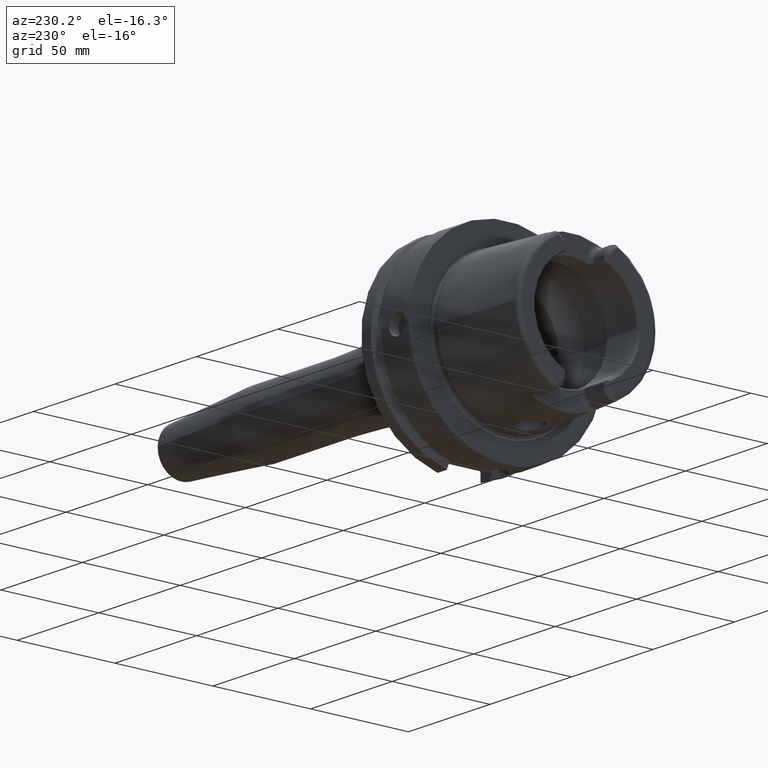
[diagram: clean part render]
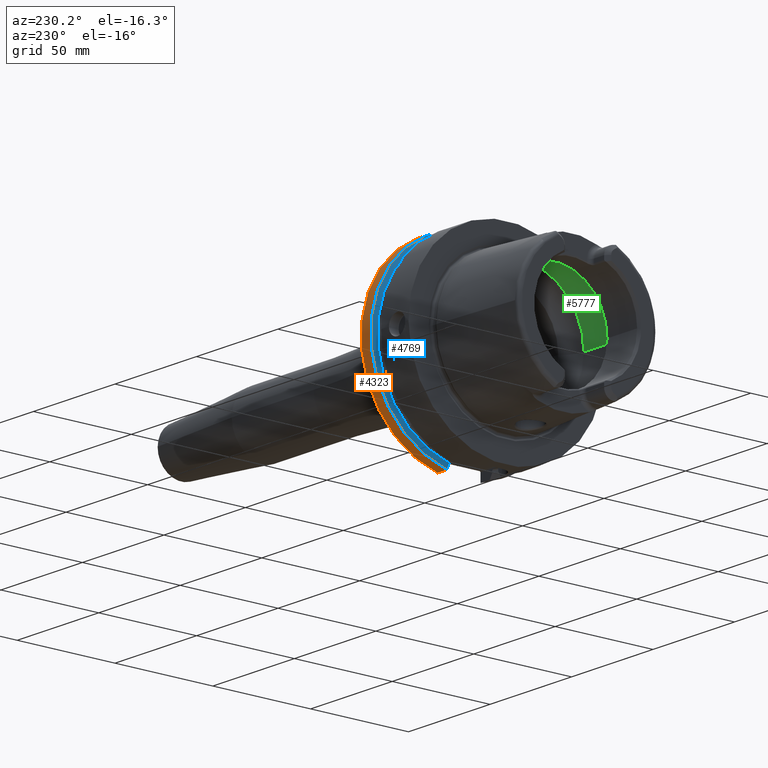
[diagram: same view with three faces highlighted in distinct colors, each labeled with its STEP entity id]
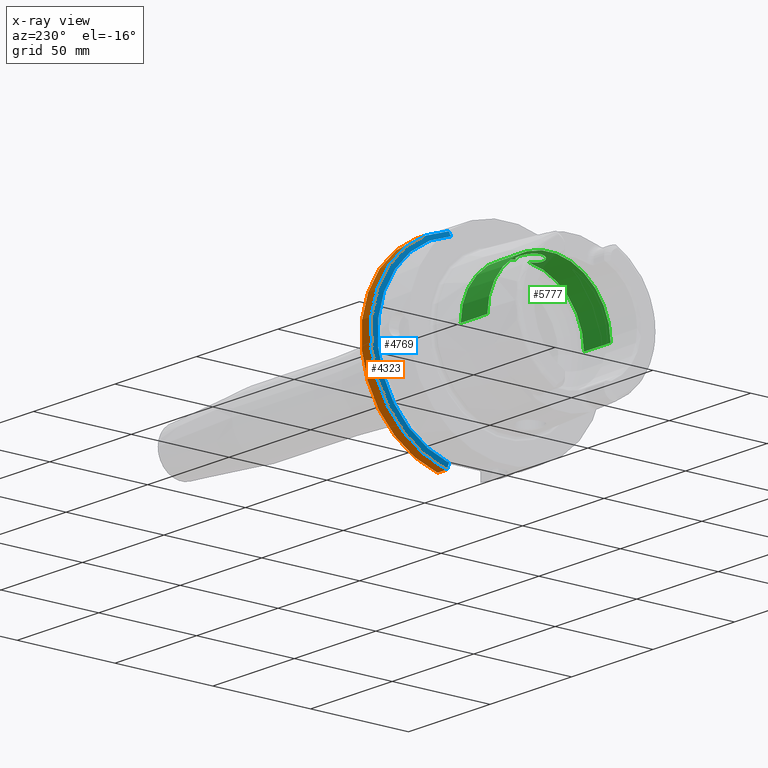
[diagram: x-ray of the same camera — body ghosted, the three highlighted faces saturated]
A machine part, auxiliary view with three faces highlighted in distinct colors.
The next image is the same camera in x-ray (body ghosted, the three faces saturated) — at least one of them is partly hidden behind the body in this view.
Their STEP definitions:

[orange] entity #4323 — the highlighted cylindrical surface (partial cylindrical patch) has radius 50 mm, axis along (1, 0, 0).
#1110=DIRECTION('',(1.E0,0.E0,0.E0));
#1111=VECTOR('',#1110,5.752404735808E0);
#1112=CARTESIAN_POINT('',(2.324759526419E1,1.1E1,-4.877499359303E1));
#1113=LINE('',#1112,#1111);
#1114=CARTESIAN_POINT('',(2.9E1,0.E0,0.E0));
#1115=DIRECTION('',(1.E0,0.E0,0.E0));
#1116=DIRECTION('',(0.E0,2.2E-1,-9.754998718606E-1));
#1117=AXIS2_PLACEMENT_3D('',#1114,#1115,#1116);
#1119=DIRECTION('',(1.E0,0.E0,0.E0));
#1120=VECTOR('',#1119,5.752404735808E0);
#1121=CARTESIAN_POINT('',(2.324759526419E1,1.E1,4.898979485566E1));
#1122=LINE('',#1121,#1120);
#1653=CARTESIAN_POINT('',(2.324759526419E1,0.E0,0.E0));
#1654=DIRECTION('',(1.E0,0.E0,0.E0));
#1655=DIRECTION('',(0.E0,2.2E-1,-9.754998718606E-1));
#1656=AXIS2_PLACEMENT_3D('',#1653,#1654,#1655);
#1663=CARTESIAN_POINT('',(2.324759526419E1,1.E1,4.898979485566E1));
#3009=VERTEX_POINT('',#1663);
#3018=CARTESIAN_POINT('',(2.324759526419E1,1.1E1,-4.877499359303E1));
#3019=CARTESIAN_POINT('',(2.9E1,1.1E1,-4.877499359303E1));
#3020=VERTEX_POINT('',#3018);
#3021=VERTEX_POINT('',#3019);
#3064=CARTESIAN_POINT('',(2.9E1,1.E1,4.898979485566E1));
#3065=VERTEX_POINT('',#3064);
#4309=CARTESIAN_POINT('',(-5.395E1,0.E0,0.E0));
#4310=DIRECTION('',(1.E0,0.E0,0.E0));
#4311=DIRECTION('',(0.E0,-1.E0,0.E0));
#4312=AXIS2_PLACEMENT_3D('',#4309,#4310,#4311);
#4313=CYLINDRICAL_SURFACE('',#4312,5.E1);
#4315=ORIENTED_EDGE('',*,*,#4314,.T.);
#4316=ORIENTED_EDGE('',*,*,#4258,.T.);
#4318=ORIENTED_EDGE('',*,*,#4317,.F.);
#4320=ORIENTED_EDGE('',*,*,#4319,.F.);
#4321=EDGE_LOOP('',(#4315,#4316,#4318,#4320));
#4322=FACE_OUTER_BOUND('',#4321,.F.);
#4323=ADVANCED_FACE('',(#4322),#4313,.T.);
#1118=CIRCLE('',#1117,5.E1);
#1657=CIRCLE('',#1656,5.E1);
#4258=EDGE_CURVE('',#3021,#3065,#1118,.T.);
#4314=EDGE_CURVE('',#3020,#3021,#1113,.T.);
#4317=EDGE_CURVE('',#3009,#3065,#1122,.T.);
#4319=EDGE_CURVE('',#3020,#3009,#1657,.T.);

[blue] entity #4769 — the highlighted conical surface has half-angle 60 deg.
#1646=CARTESIAN_POINT('',(2.324759526419E1,1.1E1,-4.877499359303E1));
#1647=CARTESIAN_POINT('',(2.309075618244E1,1.1E1,-4.849651763825E1));
#1648=CARTESIAN_POINT('',(2.277996511889E1,1.1E1,-4.794446101512E1));
#1649=CARTESIAN_POINT('',(2.232251548208E1,1.1E1,-4.713119970766E1));
#1650=CARTESIAN_POINT('',(2.202321854676E1,1.1E1,-4.659863454325E1));
#1651=CARTESIAN_POINT('',(2.1875E1,1.1E1,-4.633477721644E1));
#1653=CARTESIAN_POINT('',(2.324759526419E1,0.E0,0.E0));
#1654=DIRECTION('',(1.E0,0.E0,0.E0));
#1655=DIRECTION('',(0.E0,2.2E-1,-9.754998718606E-1));
#1656=AXIS2_PLACEMENT_3D('',#1653,#1654,#1655);
#1658=CARTESIAN_POINT('',(2.1875E1,1.E1,4.656083740331E1));
#1659=CARTESIAN_POINT('',(2.202341485415E1,1.E1,4.682376142925E1));
#1660=CARTESIAN_POINT('',(2.232297392293E1,1.E1,4.735424823675E1));
#1661=CARTESIAN_POINT('',(2.278043311037E1,1.E1,4.816377318979E1));
#1662=CARTESIAN_POINT('',(2.309095690730E1,1.E1,4.871289474479E1));
#1663=CARTESIAN_POINT('',(2.324759526419E1,1.E1,4.898979485566E1));
#1665=CARTESIAN_POINT('',(2.1875E1,0.E0,0.E0));
#1666=DIRECTION('',(-1.E0,0.E0,0.E0));
#1667=DIRECTION('',(0.E0,2.099843560504E-1,9.777047459300E-1));
#1668=AXIS2_PLACEMENT_3D('',#1665,#1666,#1667);
#3006=CARTESIAN_POINT('',(2.1875E1,1.E1,4.656083740331E1));
#3007=VERTEX_POINT('',#3006);
#3009=VERTEX_POINT('',#1663);
#3018=CARTESIAN_POINT('',(2.324759526419E1,1.1E1,-4.877499359303E1));
#3020=VERTEX_POINT('',#3018);
#3046=CARTESIAN_POINT('',(2.1875E1,1.1E1,-4.633477721644E1));
#3047=VERTEX_POINT('',#3046);
#4757=CARTESIAN_POINT('',(2.256129763210E1,0.E0,0.E0));
#4758=DIRECTION('',(1.E0,0.E0,0.E0));
#4759=DIRECTION('',(0.E0,-1.E0,0.E0));
#4760=AXIS2_PLACEMENT_3D('',#4757,#4758,#4759);
#4761=CONICAL_SURFACE('',#4760,4.881129763210E1,6.E1);
#4762=ORIENTED_EDGE('',*,*,#4388,.F.);
#4763=ORIENTED_EDGE('',*,*,#4319,.T.);
#4765=ORIENTED_EDGE('',*,*,#4764,.F.);
#4766=ORIENTED_EDGE('',*,*,#4721,.T.);
#4767=EDGE_LOOP('',(#4762,#4763,#4765,#4766));
#4768=FACE_OUTER_BOUND('',#4767,.F.);
#4769=ADVANCED_FACE('',(#4768),#4761,.T.);
#1652=B_SPLINE_CURVE_WITH_KNOTS('',3,(#1646,#1647,#1648,#1649,#1650,#1651),
.UNSPECIFIED.,.F.,.F.,(4,1,1,4),(0.E0,3.333333333333E-1,6.666666666667E-1,1.E0),
.UNSPECIFIED.);
#1657=CIRCLE('',#1656,5.E1);
#1664=B_SPLINE_CURVE_WITH_KNOTS('',3,(#1658,#1659,#1660,#1661,#1662,#1663),
.UNSPECIFIED.,.F.,.F.,(4,1,1,4),(0.E0,3.333333333333E-1,6.666666666667E-1,1.E0),
.UNSPECIFIED.);
#1669=CIRCLE('',#1668,4.762259526419E1);
#4319=EDGE_CURVE('',#3020,#3009,#1657,.T.);
#4388=EDGE_CURVE('',#3020,#3047,#1652,.T.);
#4721=EDGE_CURVE('',#3007,#3047,#1669,.T.);
#4764=EDGE_CURVE('',#3007,#3009,#1664,.T.);

[green] entity #5777 — the highlighted cylindrical surface (partial cylindrical patch) has radius 31.5 mm, axis along (1, 0, 0).
#2089=CARTESIAN_POINT('',(-9.846794344809E0,3.073185883624E0,3.134972932139E1));
#2091=CARTESIAN_POINT('',(-9.846794344809E0,-3.073185883624E0,
3.134972932139E1));
#2105=CARTESIAN_POINT('',(-9.846794344809E0,3.073185883624E0,3.134972932139E1));
#2106=CARTESIAN_POINT('',(-9.979350610583E0,3.295460007053E0,3.132793998818E1));
#2107=CARTESIAN_POINT('',(-1.027063887730E1,3.719249728918E0,3.128166137702E1));
#2108=CARTESIAN_POINT('',(-1.079035808135E1,4.298920478732E0,3.120689190392E1));
#2109=CARTESIAN_POINT('',(-1.137898274965E1,4.805041081809E0,3.113254787077E1));
#2110=CARTESIAN_POINT('',(-1.202658779818E1,5.230450418473E0,3.106351678434E1));
#2111=CARTESIAN_POINT('',(-1.271973952812E1,5.567575114105E0,3.100453126817E1));
#2112=CARTESIAN_POINT('',(-1.345035493347E1,5.813488696578E0,3.095911024256E1));
#2113=CARTESIAN_POINT('',(-1.420764120587E1,5.964169161635E0,3.093027187856E1));
#2114=CARTESIAN_POINT('',(-1.497984446875E1,6.016521870398E0,3.092007259785E1));
#2115=CARTESIAN_POINT('',(-1.575309935594E1,5.969543750814E0,3.092922961197E1));
#2116=CARTESIAN_POINT('',(-1.652541066125E1,5.820717381311E0,3.095775345043E1));
#2117=CARTESIAN_POINT('',(-1.727341934717E1,5.571094163642E0,3.100391709528E1));
#2118=CARTESIAN_POINT('',(-1.797719195757E1,5.228690177102E0,3.106382935769E1));
#2119=CARTESIAN_POINT('',(-1.863207171596E1,4.797562142056E0,3.113375842146E1));
#2120=CARTESIAN_POINT('',(-1.923624043330E1,4.274224967480E0,3.121040427516E1));
#2121=CARTESIAN_POINT('',(-1.976613927382E1,3.673557002686E0,3.128721124755E1));
#2122=CARTESIAN_POINT('',(-2.020637808011E1,3.016563255921E0,3.135771603394E1));
#2123=CARTESIAN_POINT('',(-2.055582787998E1,2.311076998962E0,3.141795380196E1));
#2124=CARTESIAN_POINT('',(-2.081257397864E1,1.557663843048E0,3.146462805191E1));
#2125=CARTESIAN_POINT('',(-2.096662575255E1,7.779183163064E-1,
3.149361665994E1));
#2126=CARTESIAN_POINT('',(-2.1E1,2.599995876471E-1,3.15E1));
#2127=CARTESIAN_POINT('',(-2.1E1,0.E0,3.15E1));
#2129=CARTESIAN_POINT('',(-9.846794344809E0,0.E0,0.E0));
#2130=DIRECTION('',(1.E0,0.E0,0.E0));
#2131=DIRECTION('',(0.E0,1.E0,0.E0));
#2132=AXIS2_PLACEMENT_3D('',#2129,#2130,#2131);
#2134=CARTESIAN_POINT('',(-9.846794344809E0,0.E0,0.E0));
#2135=DIRECTION('',(1.E0,0.E0,0.E0));
#2136=DIRECTION('',(0.E0,-9.756145662299E-2,9.952295022665E-1));
#2137=AXIS2_PLACEMENT_3D('',#2134,#2135,#2136);
#2139=CARTESIAN_POINT('',(-2.1E1,0.E0,3.15E1));
#2140=CARTESIAN_POINT('',(-2.1E1,-2.571227322628E-1,3.15E1));
#2141=CARTESIAN_POINT('',(-2.096736472421E1,-7.693984126219E-1,
3.149375838501E1));
#2142=CARTESIAN_POINT('',(-2.081659080202E1,-1.541049857093E0,
3.146537963405E1));
#2143=CARTESIAN_POINT('',(-2.056550243220E1,-2.286682308644E0,
3.141968549161E1));
#2144=CARTESIAN_POINT('',(-2.022340587255E1,-2.986151195866E0,
3.136058293097E1));
#2145=CARTESIAN_POINT('',(-1.979326828629E1,-3.637340617479E0,
3.129140992251E1));
#2146=CARTESIAN_POINT('',(-1.927478905529E1,-4.235071698102E0,
3.121573223434E1));
#2147=CARTESIAN_POINT('',(-1.868247740736E1,-4.758599460883E0,
3.113974969594E1));
#2148=CARTESIAN_POINT('',(-1.803686661027E1,-5.194005287447E0,
3.106967109408E1));
#2149=CARTESIAN_POINT('',(-1.734161583992E1,-5.542612510908E0,
3.100904668501E1));
#2150=CARTESIAN_POINT('',(-1.659831672384E1,-5.801097428712E0,
3.096145823760E1));
#2151=CARTESIAN_POINT('',(-1.582796267308E1,-5.959654019058E0,
3.093114785940E1));
#2152=CARTESIAN_POINT('',(-1.505461105168E1,-6.016295452388E0,
3.092011677740E1));
#2153=CARTESIAN_POINT('',(-1.428037054876E1,-5.973681036842E0,
3.092842594800E1));
#2154=CARTESIAN_POINT('',(-1.350797364848E1,-5.829331845562E0,
3.095612333536E1));
#2155=CARTESIAN_POINT('',(-1.275967231567E1,-5.584336729774E0,
3.100151619127E1));
#2156=CARTESIAN_POINT('',(-1.205825931241E1,-5.248465876117E0,
3.106046672590E1));
#2157=CARTESIAN_POINT('',(-1.140515180586E1,-4.825059400574E0,
3.112945635419E1));
#2158=CARTESIAN_POINT('',(-1.080442776173E1,-4.313579447853E0,
3.120492076547E1));
#2159=CARTESIAN_POINT('',(-1.027427619122E1,-3.724621952008E0,
3.128107616940E1));
#2160=CARTESIAN_POINT('',(-9.980265351482E0,-3.296993870656E0,
3.132778962490E1));
#2161=CARTESIAN_POINT('',(-9.846794344809E0,-3.073185883624E0,
3.134972932139E1));
#2216=DIRECTION('',(-1.E0,0.E0,0.E0));
#2217=VECTOR('',#2216,1.640380457843E1);
#2218=CARTESIAN_POINT('',(-9.846794344809E0,-3.15E1,0.E0));
#2219=LINE('',#2218,#2217);
#2220=DIRECTION('',(-1.E0,0.E0,0.E0));
#2221=VECTOR('',#2220,1.640380457843E1);
#2222=CARTESIAN_POINT('',(-9.846794344809E0,3.15E1,0.E0));
#2223=LINE('',#2222,#2221);
#2473=CARTESIAN_POINT('',(-2.625059892324E1,0.E0,0.E0));
#2474=DIRECTION('',(1.E0,0.E0,0.E0));
#2475=DIRECTION('',(0.E0,1.E0,0.E0));
#2476=AXIS2_PLACEMENT_3D('',#2473,#2474,#2475);
#2755=CARTESIAN_POINT('',(-9.846794344809E0,3.15E1,0.E0));
#2756=VERTEX_POINT('',#2755);
#2757=CARTESIAN_POINT('',(-2.625059892324E1,3.15E1,0.E0));
#2758=VERTEX_POINT('',#2757);
#2767=CARTESIAN_POINT('',(-9.846794344809E0,-3.15E1,0.E0));
#2768=VERTEX_POINT('',#2767);
#2769=CARTESIAN_POINT('',(-2.625059892324E1,-3.15E1,0.E0));
#2770=VERTEX_POINT('',#2769);
#2935=VERTEX_POINT('',#2089);
#2936=VERTEX_POINT('',#2091);
#2937=VERTEX_POINT('',#2127);
#5760=CARTESIAN_POINT('',(-5.3125E1,0.E0,0.E0));
#5761=DIRECTION('',(1.E0,0.E0,0.E0));
#5762=DIRECTION('',(0.E0,-1.E0,0.E0));
#5763=AXIS2_PLACEMENT_3D('',#5760,#5761,#5762);
#5764=CYLINDRICAL_SURFACE('',#5763,3.15E1);
#5765=ORIENTED_EDGE('',*,*,#5719,.F.);
#5766=ORIENTED_EDGE('',*,*,#5755,.F.);
#5768=ORIENTED_EDGE('',*,*,#5767,.T.);
#5770=ORIENTED_EDGE('',*,*,#5769,.T.);
#5772=ORIENTED_EDGE('',*,*,#5771,.F.);
#5773=ORIENTED_EDGE('',*,*,#5747,.F.);
#5774=ORIENTED_EDGE('',*,*,#5441,.F.);
#5775=EDGE_LOOP('',(#5765,#5766,#5768,#5770,#5772,#5773,#5774));
#5776=FACE_OUTER_BOUND('',#5775,.F.);
#5777=ADVANCED_FACE('',(#5776),#5764,.F.);
#2128=B_SPLINE_CURVE_WITH_KNOTS('',3,(#2105,#2106,#2107,#2108,#2109,#2110,#2111,
#2112,#2113,#2114,#2115,#2116,#2117,#2118,#2119,#2120,#2121,#2122,#2123,#2124,
#2125,#2126,#2127),.UNSPECIFIED.,.F.,.F.,(4,1,1,1,1,1,1,1,1,1,1,1,1,1,1,1,1,1,1,
1,4),(0.E0,5.E-2,1.E-1,1.5E-1,2.E-1,2.5E-1,3.E-1,3.5E-1,4.E-1,4.5E-1,5.E-1,
5.5E-1,6.E-1,6.5E-1,7.E-1,7.5E-1,8.E-1,8.5E-1,9.E-1,9.5E-1,1.E0),.UNSPECIFIED.);
#2133=CIRCLE('',#2132,3.15E1);
#2138=CIRCLE('',#2137,3.15E1);
#2162=B_SPLINE_CURVE_WITH_KNOTS('',3,(#2139,#2140,#2141,#2142,#2143,#2144,#2145,
#2146,#2147,#2148,#2149,#2150,#2151,#2152,#2153,#2154,#2155,#2156,#2157,#2158,
#2159,#2160,#2161),.UNSPECIFIED.,.F.,.F.,(4,1,1,1,1,1,1,1,1,1,1,1,1,1,1,1,1,1,1,
1,4),(0.E0,5.E-2,1.E-1,1.5E-1,2.E-1,2.5E-1,3.E-1,3.5E-1,4.E-1,4.5E-1,5.E-1,
5.5E-1,6.E-1,6.5E-1,7.E-1,7.5E-1,8.E-1,8.5E-1,9.E-1,9.5E-1,1.E0),.UNSPECIFIED.);
#2477=CIRCLE('',#2476,3.15E1);
#5441=EDGE_CURVE('',#2937,#2936,#2162,.T.);
#5719=EDGE_CURVE('',#2935,#2937,#2128,.T.);
#5747=EDGE_CURVE('',#2936,#2768,#2138,.T.);
#5755=EDGE_CURVE('',#2756,#2935,#2133,.T.);
#5767=EDGE_CURVE('',#2756,#2758,#2223,.T.);
#5769=EDGE_CURVE('',#2758,#2770,#2477,.T.);
#5771=EDGE_CURVE('',#2768,#2770,#2219,.T.);